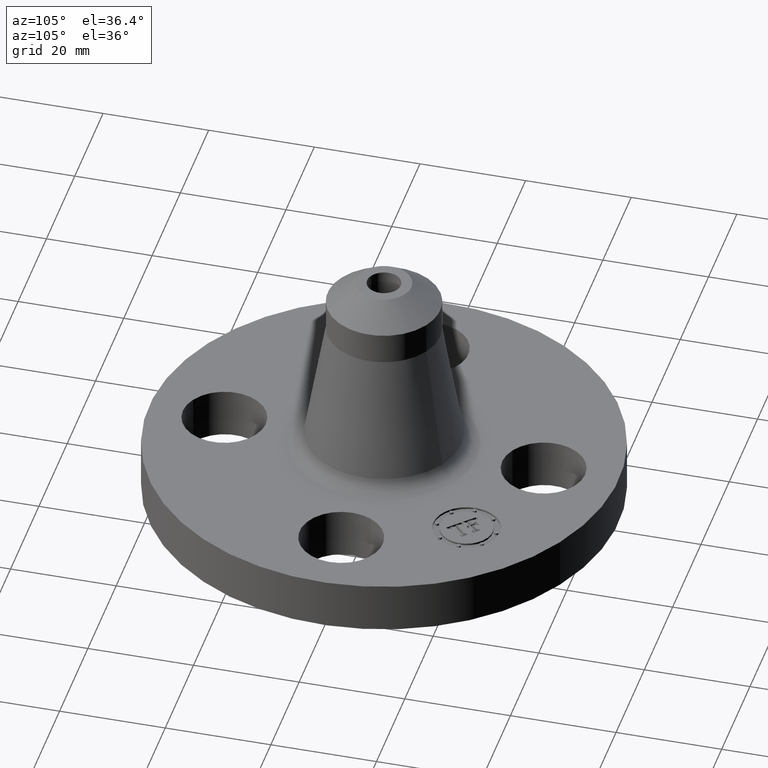
[diagram: clean part render]
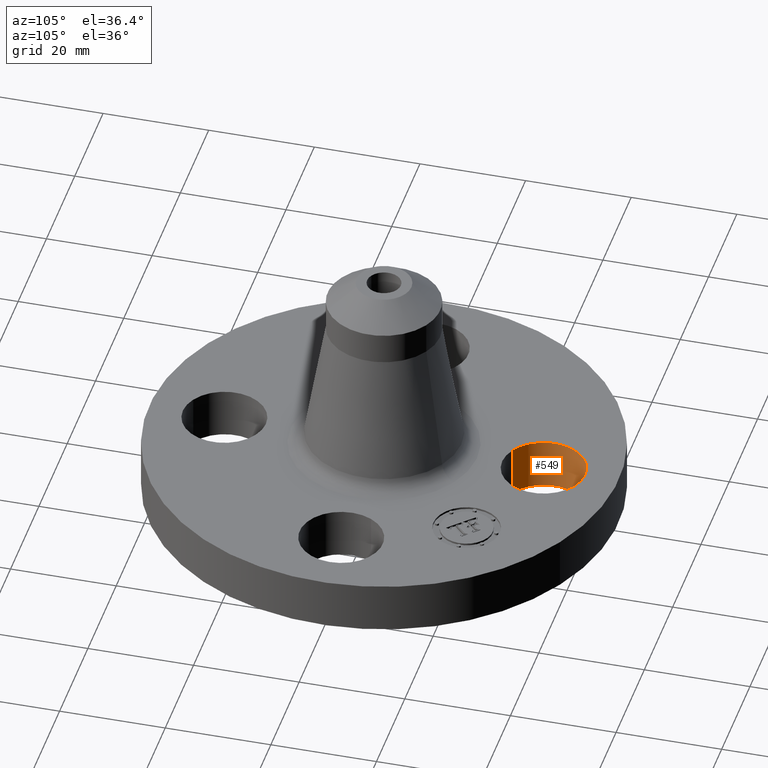
[diagram: same view with one face highlighted and labeled with its STEP entity id]
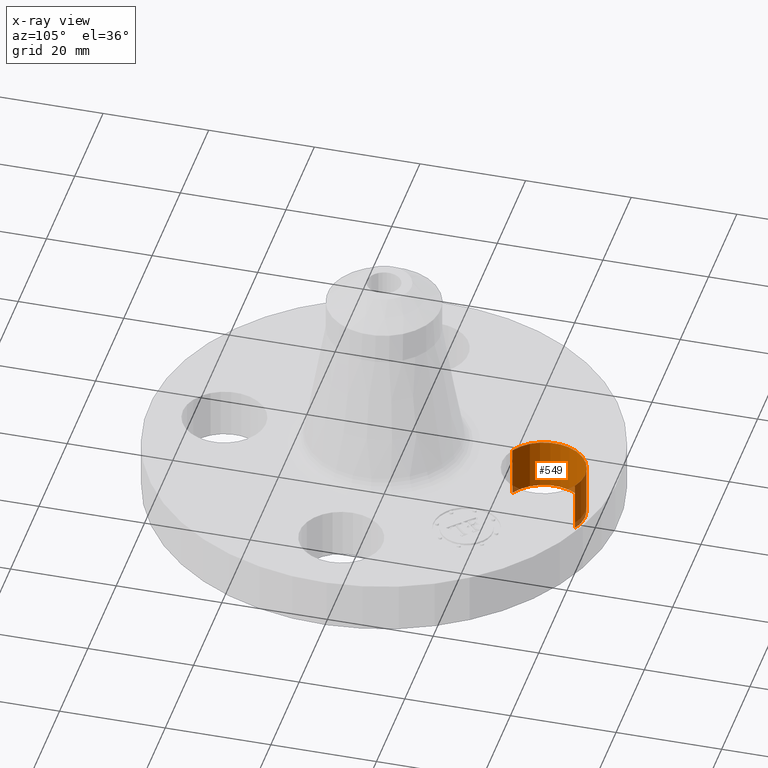
[diagram: x-ray of the same camera — body ghosted, the highlighted face saturated]
A machine part, auxiliary view. The second image highlights one B-rep face of the part: STEP entity #549.
The next image is the same camera in x-ray: the body ghosted, the highlighted face saturated — about 3% of this face is hidden behind the body in this view.
In plain terms, the highlighted cylindrical surface (partial cylindrical patch) has radius 7.874 mm, axis along (0, 0, -1).
Its self-contained STEP definition (entity closure, byte-faithful):
#502=AXIS2_PLACEMENT_3D('Circle Axis2P3D',#500,#501,$) ;
#522=AXIS2_PLACEMENT_3D('Cylinder Axis2P3D',#519,#520,#521) ;
#540=AXIS2_PLACEMENT_3D('Circle Axis2P3D',#538,#539,$) ;
#500=CARTESIAN_POINT('Axis2P3D Location',(-1.04902962957E-016,1.19,0.)) ;
#504=CARTESIAN_POINT('Vertex',(-0.148621916968,0.917949405818,0.)) ;
#506=CARTESIAN_POINT('Vertex',(0.148621916968,1.46205059419,6.99353086378E-017)) ;
#519=CARTESIAN_POINT('Axis2P3D Location',(-7.87288363731E-017,1.19,0.376062992128)) ;
#524=CARTESIAN_POINT('Line Origine',(-0.148621916968,0.917949405818,0.190000000001)) ;
#528=CARTESIAN_POINT('Vertex',(-0.148621916968,0.917949405818,0.380000000002)) ;
#531=CARTESIAN_POINT('Line Origine',(0.148621916968,1.46205059419,0.190000000001)) ;
#535=CARTESIAN_POINT('Vertex',(0.148621916968,1.46205059419,0.380000000002)) ;
#538=CARTESIAN_POINT('Axis2P3D Location',(-7.87288363731E-017,1.19,0.380000000002)) ;
#501=DIRECTION('Axis2P3D Direction',(0.,0.,-0.0393700787402)) ;
#520=DIRECTION('Axis2P3D Direction',(0.,0.,-0.0393700787402)) ;
#521=DIRECTION('Axis2P3D XDirection',(0.0188750212049,0.0345504945626,0.)) ;
#525=DIRECTION('Vector Direction',(0.,0.,-0.0393700787402)) ;
#532=DIRECTION('Vector Direction',(0.,0.,-0.0393700787402)) ;
#539=DIRECTION('Axis2P3D Direction',(0.,0.,-0.0393700787402)) ;
#526=VECTOR('Line Direction',#525,0.0393700787402) ;
#533=VECTOR('Line Direction',#532,0.0393700787402) ;
#544=ORIENTED_EDGE('',*,*,#530,.F.) ;
#545=ORIENTED_EDGE('',*,*,#508,.T.) ;
#546=ORIENTED_EDGE('',*,*,#537,.T.) ;
#547=ORIENTED_EDGE('',*,*,#542,.F.) ;
#549=ADVANCED_FACE('PartBody',(#548),#523,.F.) ;
#503=CIRCLE('generated circle',#502,0.310000000001) ;
#541=CIRCLE('generated circle',#540,0.310000000001) ;
#523=CYLINDRICAL_SURFACE('generated cylinder',#522,0.310000000001) ;
#508=EDGE_CURVE('',#505,#507,#503,.T.) ;
#530=EDGE_CURVE('',#505,#529,#527,.F.) ;
#537=EDGE_CURVE('',#507,#536,#534,.F.) ;
#542=EDGE_CURVE('',#529,#536,#541,.T.) ;
#543=EDGE_LOOP('',(#544,#545,#546,#547)) ;
#548=FACE_OUTER_BOUND('',#543,.T.) ;
#527=LINE('Line',#524,#526) ;
#534=LINE('Line',#531,#533) ;
#505=VERTEX_POINT('',#504) ;
#507=VERTEX_POINT('',#506) ;
#529=VERTEX_POINT('',#528) ;
#536=VERTEX_POINT('',#535) ;